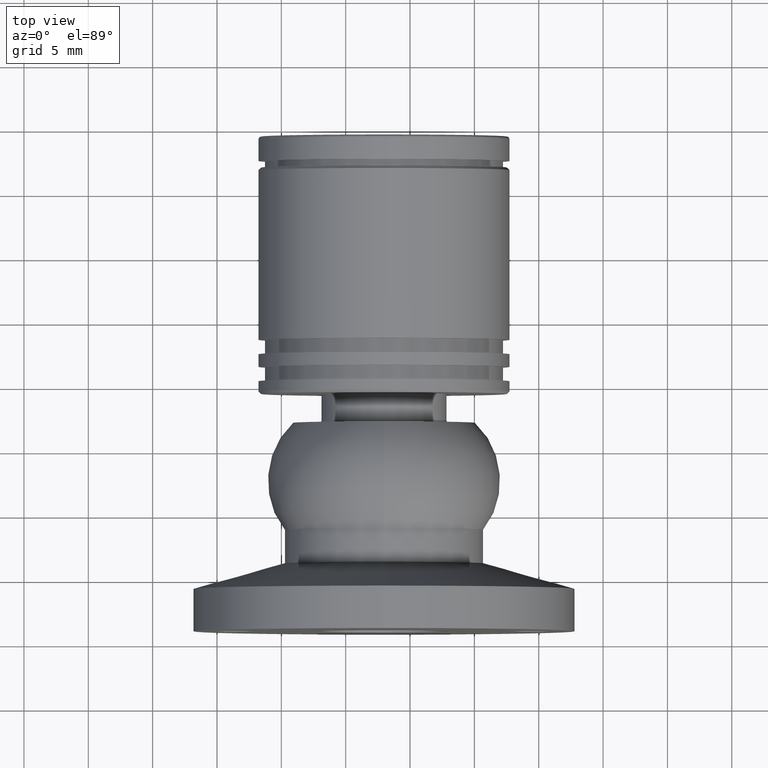
[diagram: clean part render]
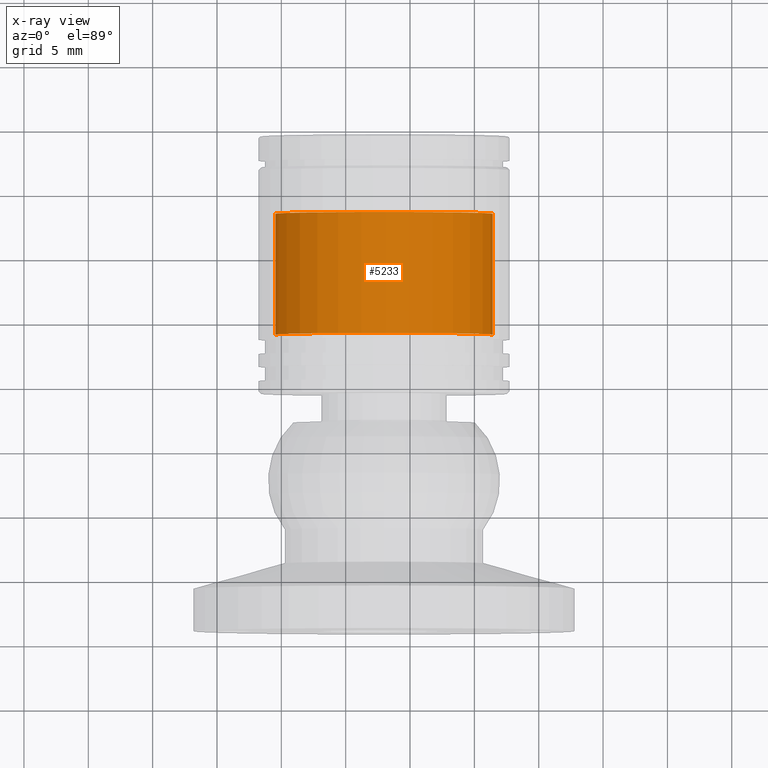
[diagram: x-ray — body ghosted, one internal face saturated and labeled with its STEP entity id]
A machine part, top view, then the same camera in x-ray: the body is ghosted and one INTERNAL B-rep face — a face not visible from any outside direction — is saturated and labeled: STEP entity #5233.
In plain terms, the highlighted cylindrical surface (partial cylindrical patch) has radius 8.45 mm, axis along (0, -1, 0).
Its self-contained STEP definition (entity closure, byte-faithful):
#37 = DIRECTION ( 'NONE',  ( -7.981960134060291135E-20, -1.000000000000000000, -0.000000000000000000 ) ) ;
#306 = FACE_OUTER_BOUND ( 'NONE', #7526, .T. ) ;
#387 = CARTESIAN_POINT ( 'NONE',  ( 8.449999999999999289, 19.76934397916141961, 0.000000000000000000 ) ) ;
#604 = DIRECTION ( 'NONE',  ( 1.000000000000000000, 0.000000000000000000, 0.000000000000000000 ) ) ;
#810 = EDGE_CURVE ( 'NONE', #2899, #6672, #4528, .T. ) ;
#1000 = AXIS2_PLACEMENT_3D ( 'NONE', #6715, #37, #8811 ) ;
#1592 = EDGE_CURVE ( 'NONE', #4389, #6672, #3773, .T. ) ;
#1624 = EDGE_CURVE ( 'NONE', #6533, #4389, #7121, .T. ) ;
#1712 = DIRECTION ( 'NONE',  ( -7.981960134060291135E-20, -1.000000000000000000, -0.000000000000000000 ) ) ;
#2437 = DIRECTION ( 'NONE',  ( 1.000000000000000000, 0.000000000000000000, 0.000000000000000000 ) ) ;
#2591 = VECTOR ( 'NONE', #2607, 1000.000000000000000 ) ;
#2607 = DIRECTION ( 'NONE',  ( -7.981960134060291135E-20, -1.000000000000000000, -0.000000000000000000 ) ) ;
#2899 = VERTEX_POINT ( 'NONE', #8724 ) ;
#3476 = CARTESIAN_POINT ( 'NONE',  ( -5.327492537045569628E-15, 19.76934397916141961, 0.000000000000000000 ) ) ;
#3773 = CIRCLE ( 'NONE', #5254, 8.450000000000004619 ) ;
#3881 = DIRECTION ( 'NONE',  ( -7.981960134060291135E-20, -1.000000000000000000, -0.000000000000000000 ) ) ;
#4256 = DIRECTION ( 'NONE',  ( -7.981960134060291135E-20, -1.000000000000000000, -0.000000000000000000 ) ) ;
#4389 = VERTEX_POINT ( 'NONE', #4552 ) ;
#4528 = LINE ( 'NONE', #7719, #2591 ) ;
#4552 = CARTESIAN_POINT ( 'NONE',  ( 8.449999999999999289, 10.36934397916138550, 0.000000000000000000 ) ) ;
#4645 = EDGE_CURVE ( 'NONE', #6533, #2899, #7492, .T. ) ;
#5233 = ADVANCED_FACE ( 'NONE', ( #306 ), #8500, .F. ) ;
#5254 = AXIS2_PLACEMENT_3D ( 'NONE', #7673, #1712, #2437 ) ;
#5851 = ORIENTED_EDGE ( 'NONE', *, *, #1624, .T. ) ;
#6533 = VERTEX_POINT ( 'NONE', #387 ) ;
#6672 = VERTEX_POINT ( 'NONE', #8137 ) ;
#6715 = CARTESIAN_POINT ( 'NONE',  ( -5.329070518200751394E-15, 7.105427357601001859E-15, 0.000000000000000000 ) ) ;
#7121 = LINE ( 'NONE', #7549, #9049 ) ;
#7365 = ORIENTED_EDGE ( 'NONE', *, *, #4645, .F. ) ;
#7492 = CIRCLE ( 'NONE', #7595, 8.450000000000004619 ) ;
#7526 = EDGE_LOOP ( 'NONE', ( #8884, #7365, #5851, #7841 ) ) ;
#7549 = CARTESIAN_POINT ( 'NONE',  ( 8.449999999999999289, 7.104752881969674058E-15, 0.000000000000000000 ) ) ;
#7595 = AXIS2_PLACEMENT_3D ( 'NONE', #3476, #4256, #604 ) ;
#7673 = CARTESIAN_POINT ( 'NONE',  ( -5.328242841298171851E-15, 10.36934397916138550, 0.000000000000000000 ) ) ;
#7719 = CARTESIAN_POINT ( 'NONE',  ( -8.450000000000009948, 7.106101833232329659E-15, 1.034826545279514053E-15 ) ) ;
#7841 = ORIENTED_EDGE ( 'NONE', *, *, #1592, .T. ) ;
#8137 = CARTESIAN_POINT ( 'NONE',  ( -8.450000000000009948, 10.36934397916138550, 1.034826545279514053E-15 ) ) ;
#8500 = CYLINDRICAL_SURFACE ( 'NONE', #1000, 8.450000000000004619 ) ;
#8724 = CARTESIAN_POINT ( 'NONE',  ( -8.450000000000009948, 19.76934397916141961, 1.034826545279514053E-15 ) ) ;
#8811 = DIRECTION ( 'NONE',  ( 1.000000000000000000, -7.981960134062201416E-20, 0.000000000000000000 ) ) ;
#8884 = ORIENTED_EDGE ( 'NONE', *, *, #810, .F. ) ;
#9049 = VECTOR ( 'NONE', #3881, 1000.000000000000000 ) ;